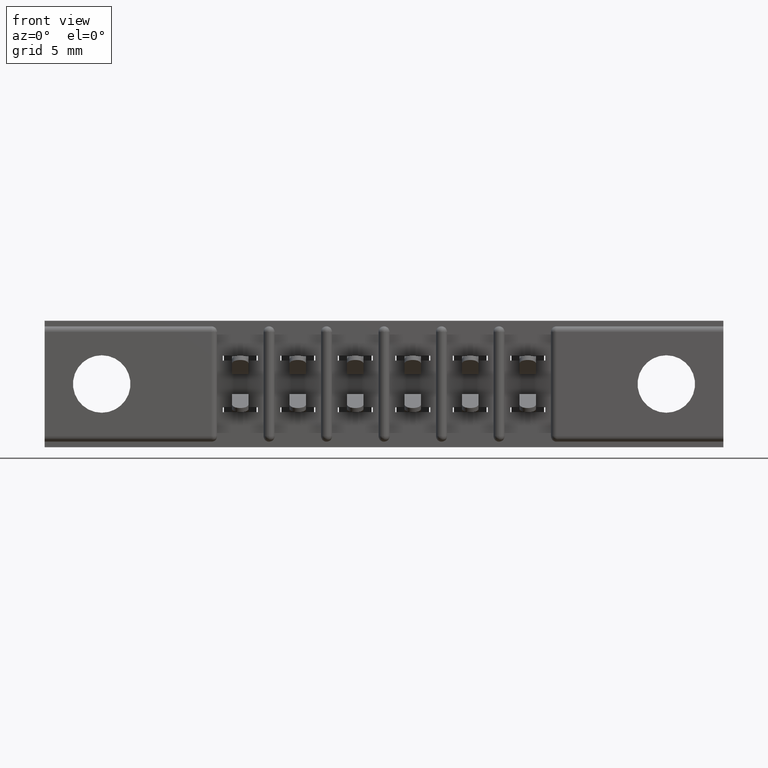
[diagram: clean part render]
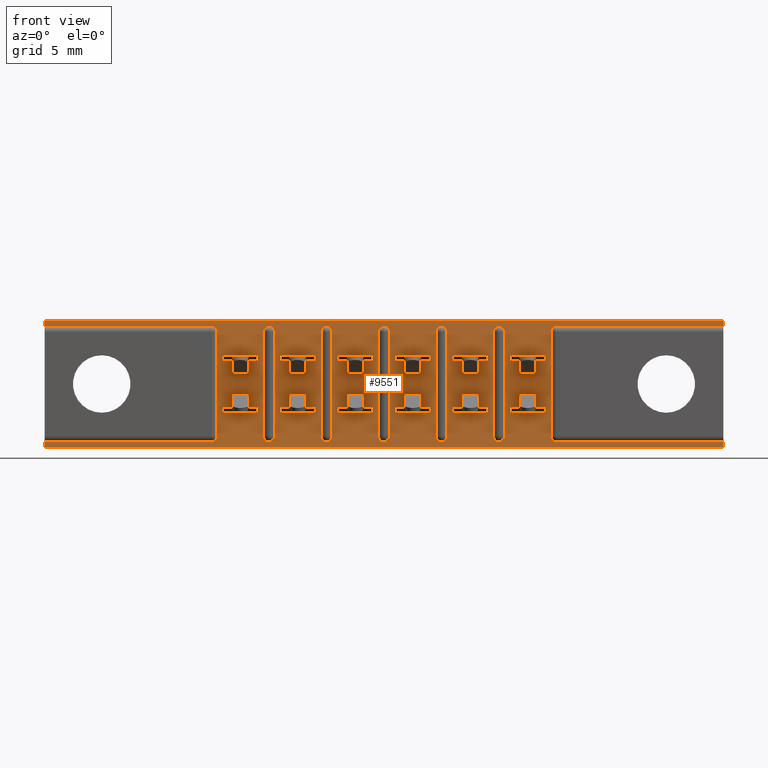
[diagram: same view with one face highlighted and labeled with its STEP entity id]
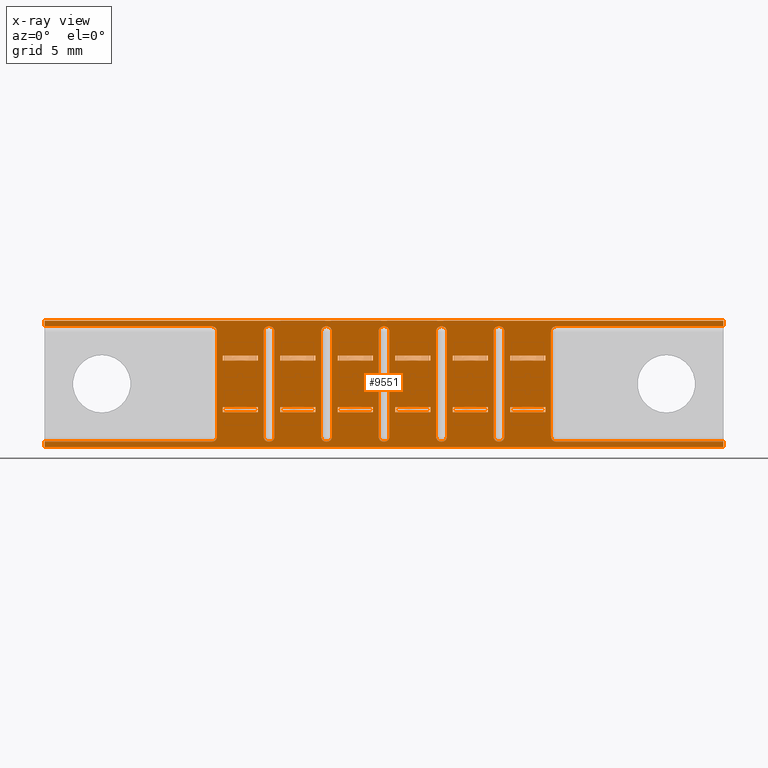
[diagram: x-ray of the same camera — body ghosted, the highlighted face saturated]
A machine part, front view. The second image highlights one B-rep face of the part: STEP entity #9551.
The next image is the same camera in x-ray: the body ghosted, the highlighted face saturated — about 0% of this face is hidden behind the body in this view.
In plain terms, the highlighted planar face has unit normal (0, 1, 0).
Its self-contained STEP definition (entity closure, byte-faithful):
#12 = ORIENTED_EDGE ( 'NONE', *, *, #849, .T. ) ;
#14 = VERTEX_POINT ( 'NONE', #5727 ) ;
#19 = DIRECTION ( 'NONE',  ( 0.0000000000000000000, 1.000000000000000000, 0.0000000000000000000 ) ) ;
#42 = DIRECTION ( 'NONE',  ( 0.0000000000000000000, 0.0000000000000000000, 1.000000000000000000 ) ) ;
#128 = AXIS2_PLACEMENT_3D ( 'NONE', #3948, #1343, #4773 ) ;
#149 = CARTESIAN_POINT ( 'NONE',  ( 0.4835000000000014800, 0.03100000000000000000, -0.09500000000000020900 ) ) ;
#153 = ORIENTED_EDGE ( 'NONE', *, *, #7187, .F. ) ;
#174 = AXIS2_PLACEMENT_3D ( 'NONE', #8271, #332, #300 ) ;
#186 = VECTOR ( 'NONE', #11298, 39.37007874015748100 ) ;
#192 = VERTEX_POINT ( 'NONE', #7012 ) ;
#200 = CARTESIAN_POINT ( 'NONE',  ( 0.0000000000000000000, 0.03100000000000000000, -0.3280000000000000100 ) ) ;
#205 = EDGE_CURVE ( 'NONE', #5722, #784, #3709, .T. ) ;
#226 = DIRECTION ( 'NONE',  ( 0.0000000000000000000, 0.0000000000000000000, 1.000000000000000000 ) ) ;
#238 = CARTESIAN_POINT ( 'NONE',  ( 0.5785000000000020100, 0.03100000000000000000, -0.09500000000000032000 ) ) ;
#242 = DIRECTION ( 'NONE',  ( -1.000000000000000000, -0.0000000000000000000, -0.0000000000000000000 ) ) ;
#256 = CARTESIAN_POINT ( 'NONE',  ( 1.202500000000001900, 0.03100000000000002400, -0.2350000000000002400 ) ) ;
#265 = VERTEX_POINT ( 'NONE', #1005 ) ;
#298 = FACE_BOUND ( 'NONE', #4137, .T. ) ;
#300 = DIRECTION ( 'NONE',  ( 0.0000000000000000000, 0.0000000000000000000, 1.000000000000000000 ) ) ;
#332 = DIRECTION ( 'NONE',  ( 0.0000000000000000000, 1.000000000000000000, 0.0000000000000000000 ) ) ;
#333 = ORIENTED_EDGE ( 'NONE', *, *, #8305, .T. ) ;
#349 = CIRCLE ( 'NONE', #5737, 0.01499999999999999900 ) ;
#361 = DIRECTION ( 'NONE',  ( 0.0000000000000000000, 0.0000000000000000000, -1.000000000000000000 ) ) ;
#365 = VERTEX_POINT ( 'NONE', #1200 ) ;
#370 = CARTESIAN_POINT ( 'NONE',  ( 0.9515000000000014600, 0.03100000000000000000, -0.09500000000000020900 ) ) ;
#385 = CARTESIAN_POINT ( 'NONE',  ( 0.7800000000000001400, 0.03100000000000002400, -0.3130000000000000600 ) ) ;
#386 = VERTEX_POINT ( 'NONE', #2009 ) ;
#401 = VERTEX_POINT ( 'NONE', #7468 ) ;
#414 = CARTESIAN_POINT ( 'NONE',  ( 0.5785000000000020100, 0.03100000000000002400, -0.05850000000000024600 ) ) ;
#433 = DIRECTION ( 'NONE',  ( 0.0000000000000000000, -0.0000000000000000000, 1.000000000000000000 ) ) ;
#449 = DIRECTION ( 'NONE',  ( 0.0000000000000000000, -0.0000000000000000000, 1.000000000000000000 ) ) ;
#460 = VECTOR ( 'NONE', #1915, 39.37007874015748100 ) ;
#501 = DIRECTION ( 'NONE',  ( 0.0000000000000000000, -0.0000000000000000000, 1.000000000000000000 ) ) ;
#512 = PLANE ( 'NONE',  #5108 ) ;
#516 = DIRECTION ( 'NONE',  ( 0.0000000000000000000, 0.0000000000000000000, 1.000000000000000000 ) ) ;
#525 = EDGE_CURVE ( 'NONE', #4069, #8146, #1613, .T. ) ;
#528 = EDGE_CURVE ( 'NONE', #5806, #2713, #6227, .T. ) ;
#578 = CARTESIAN_POINT ( 'NONE',  ( 0.4835000000000014800, 0.03100000000000000000, -0.09500000000000020900 ) ) ;
#597 = CARTESIAN_POINT ( 'NONE',  ( 0.4680000000000001900, 0.03100000000000002400, -0.02999999999999995400 ) ) ;
#604 = CARTESIAN_POINT ( 'NONE',  ( 1.092000000000000100, 0.03100000000000002400, -0.3130000000000000600 ) ) ;
#637 = CARTESIAN_POINT ( 'NONE',  ( 0.7955000000000014300, 0.03100000000000000000, -0.1080000000000002100 ) ) ;
#671 = VECTOR ( 'NONE', #1262, 39.37007874015748100 ) ;
#675 = ORIENTED_EDGE ( 'NONE', *, *, #4058, .F. ) ;
#747 = ORIENTED_EDGE ( 'NONE', *, *, #9666, .T. ) ;
#779 = VECTOR ( 'NONE', #2792, 39.37007874015748100 ) ;
#784 = VERTEX_POINT ( 'NONE', #6225 ) ;
#793 = CARTESIAN_POINT ( 'NONE',  ( 1.107500000000002100, 0.03100000000000002400, -0.05850000000000024600 ) ) ;
#811 = EDGE_CURVE ( 'NONE', #192, #5509, #3545, .T. ) ;
#849 = EDGE_CURVE ( 'NONE', #4069, #10961, #2016, .T. ) ;
#854 = ORIENTED_EDGE ( 'NONE', *, *, #4818, .T. ) ;
#874 = CIRCLE ( 'NONE', #8140, 0.01499999999999999900 ) ;
#878 = CARTESIAN_POINT ( 'NONE',  ( 0.6090000000000002100, 0.03100000000000000000, -0.3130000000000000600 ) ) ;
#883 = LINE ( 'NONE', #4412, #8411 ) ;
#915 = CARTESIAN_POINT ( 'NONE',  ( 0.9210000000000000400, 0.03100000000000000000, -0.3280000000000000100 ) ) ;
#949 = ORIENTED_EDGE ( 'NONE', *, *, #4840, .F. ) ;
#950 = CARTESIAN_POINT ( 'NONE',  ( 0.0000000000000000000, 0.03100000000000000000, -0.3430000000000000300 ) ) ;
#962 = ORIENTED_EDGE ( 'NONE', *, *, #5467, .T. ) ;
#992 = VECTOR ( 'NONE', #6821, 39.37007874015748100 ) ;
#994 = VERTEX_POINT ( 'NONE', #6334 ) ;
#998 = CARTESIAN_POINT ( 'NONE',  ( 0.4530000000000001800, 0.03100000000000002400, -0.02999999999999995400 ) ) ;
#1001 = DIRECTION ( 'NONE',  ( 0.0000000000000000000, 1.000000000000000000, 0.0000000000000000000 ) ) ;
#1003 = VERTEX_POINT ( 'NONE', #2766 ) ;
#1005 = CARTESIAN_POINT ( 'NONE',  ( 0.7650000000000001200, 0.03100000000000000000, -0.01499999999999997700 ) ) ;
#1027 = VECTOR ( 'NONE', #5986, 39.37007874015748100 ) ;
#1075 = EDGE_CURVE ( 'NONE', #10441, #2713, #10919, .T. ) ;
#1100 = VERTEX_POINT ( 'NONE', #1215 ) ;
#1105 = EDGE_CURVE ( 'NONE', #4357, #1947, #11330, .T. ) ;
#1113 = DIRECTION ( 'NONE',  ( 0.0000000000000000000, 0.0000000000000000000, 1.000000000000000000 ) ) ;
#1114 = FACE_BOUND ( 'NONE', #8063, .T. ) ;
#1119 = DIRECTION ( 'NONE',  ( 0.0000000000000000000, 1.000000000000000000, 0.0000000000000000000 ) ) ;
#1121 = DIRECTION ( 'NONE',  ( 0.0000000000000000000, 1.000000000000000000, 0.0000000000000000000 ) ) ;
#1139 = ORIENTED_EDGE ( 'NONE', *, *, #1430, .T. ) ;
#1140 = CARTESIAN_POINT ( 'NONE',  ( 0.9515000000000021200, 0.03100000000000000000, -0.2350000000000002600 ) ) ;
#1176 = CARTESIAN_POINT ( 'NONE',  ( 1.232999999999999900, 0.03100000000000000000, -0.3130000000000000600 ) ) ;
#1184 = CARTESIAN_POINT ( 'NONE',  ( 1.107500000000002100, 0.03100000000000002400, -0.2350000000000002600 ) ) ;
#1186 = DIRECTION ( 'NONE',  ( 0.0000000000000000000, 0.0000000000000000000, 1.000000000000000000 ) ) ;
#1195 = CARTESIAN_POINT ( 'NONE',  ( 1.263500000000002100, 0.03100000000000002400, -0.05850000000000024600 ) ) ;
#1200 = CARTESIAN_POINT ( 'NONE',  ( 1.218000000000000200, 0.03100000000000002400, -0.3130000000000000600 ) ) ;
#1204 = DIRECTION ( 'NONE',  ( -1.000000000000000000, 0.0000000000000000000, 1.078361050130624000E-015 ) ) ;
#1215 = CARTESIAN_POINT ( 'NONE',  ( 0.7955000000000022100, 0.03100000000000002400, -0.2350000000000002600 ) ) ;
#1218 = ORIENTED_EDGE ( 'NONE', *, *, #525, .F. ) ;
#1227 = CARTESIAN_POINT ( 'NONE',  ( 1.389000000000000200, 0.03100000000000000000, -0.3130000000000000600 ) ) ;
#1262 = DIRECTION ( 'NONE',  ( 0.0000000000000000000, -0.0000000000000000000, 1.000000000000000000 ) ) ;
#1267 = EDGE_LOOP ( 'NONE', ( #4611, #6848, #6811, #2105 ) ) ;
#1288 = LINE ( 'NONE', #9635, #9645 ) ;
#1310 = DIRECTION ( 'NONE',  ( 0.0000000000000000000, 0.0000000000000000000, -1.000000000000000000 ) ) ;
#1326 = AXIS2_PLACEMENT_3D ( 'NONE', #10565, #8910, #5346 ) ;
#1332 = VECTOR ( 'NONE', #1113, 39.37007874015748100 ) ;
#1343 = DIRECTION ( 'NONE',  ( 0.0000000000000000000, 1.000000000000000000, 0.0000000000000000000 ) ) ;
#1363 = ORIENTED_EDGE ( 'NONE', *, *, #7266, .T. ) ;
#1372 = CARTESIAN_POINT ( 'NONE',  ( 0.9210000000000000400, 0.03100000000000000000, -0.01499999999999997700 ) ) ;
#1384 = CARTESIAN_POINT ( 'NONE',  ( 0.4530000000000003500, 0.03100000000000000000, -0.3280000000000000100 ) ) ;
#1399 = ORIENTED_EDGE ( 'NONE', *, *, #3748, .T. ) ;
#1421 = VECTOR ( 'NONE', #9673, 39.37007874015748100 ) ;
#1430 = EDGE_CURVE ( 'NONE', #7798, #7427, #9537, .T. ) ;
#1440 = DIRECTION ( 'NONE',  ( 0.0000000000000000000, 0.0000000000000000000, 1.000000000000000000 ) ) ;
#1456 = EDGE_CURVE ( 'NONE', #11379, #7763, #5225, .T. ) ;
#1457 = DIRECTION ( 'NONE',  ( 0.0000000000000000000, 1.000000000000000000, 0.0000000000000000000 ) ) ;
#1500 = AXIS2_PLACEMENT_3D ( 'NONE', #1227, #3836, #4696 ) ;
#1502 = EDGE_CURVE ( 'NONE', #9294, #4254, #349, .T. ) ;
#1514 = ORIENTED_EDGE ( 'NONE', *, *, #10833, .T. ) ;
#1517 = LINE ( 'NONE', #8990, #8344 ) ;
#1521 = CARTESIAN_POINT ( 'NONE',  ( 1.358500000000001800, 0.03100000000000002400, -0.05850000000000024600 ) ) ;
#1562 = CARTESIAN_POINT ( 'NONE',  ( 0.5940000000000001900, 0.03100000000000002400, -0.4680000000000006900 ) ) ;
#1567 = LINE ( 'NONE', #10013, #4625 ) ;
#1575 = DIRECTION ( 'NONE',  ( 0.0000000000000000000, 0.0000000000000000000, 1.000000000000000000 ) ) ;
#1579 = EDGE_CURVE ( 'NONE', #3728, #4701, #6893, .T. ) ;
#1591 = CARTESIAN_POINT ( 'NONE',  ( 1.077000000000000200, 0.03100000000000000000, -0.3130000000000000600 ) ) ;
#1613 = LINE ( 'NONE', #9388, #2316 ) ;
#1622 = VERTEX_POINT ( 'NONE', #2272 ) ;
#1642 = CARTESIAN_POINT ( 'NONE',  ( 0.7954999999999992100, 0.03100000000000000000, -0.2480000000000002800 ) ) ;
#1643 = VECTOR ( 'NONE', #3576, 39.37007874015748100 ) ;
#1676 = CARTESIAN_POINT ( 'NONE',  ( 0.5940000000000001900, 0.03100000000000002400, -0.3130000000000000600 ) ) ;
#1681 = CARTESIAN_POINT ( 'NONE',  ( 0.4835000000000020400, 0.03100000000000002400, -0.05850000000000024600 ) ) ;
#1685 = CARTESIAN_POINT ( 'NONE',  ( 1.263500000000001400, 0.03100000000000000000, -0.1080000000000002100 ) ) ;
#1687 = EDGE_CURVE ( 'NONE', #7599, #10961, #3676, .T. ) ;
#1692 = ORIENTED_EDGE ( 'NONE', *, *, #7191, .T. ) ;
#1706 = CARTESIAN_POINT ( 'NONE',  ( 1.842000000000000700, 0.03100000000000000000, 0.0000000000000000000 ) ) ;
#1710 = CIRCLE ( 'NONE', #6325, 0.01499999999999999900 ) ;
#1721 = VERTEX_POINT ( 'NONE', #4297 ) ;
#1743 = EDGE_CURVE ( 'NONE', #8228, #401, #8967, .T. ) ;
#1751 = ORIENTED_EDGE ( 'NONE', *, *, #6257, .T. ) ;
#1764 = EDGE_CURVE ( 'NONE', #3894, #3615, #11031, .T. ) ;
#1774 = EDGE_LOOP ( 'NONE', ( #11099, #8809, #4116, #1139, #4765, #10185 ) ) ;
#1799 = DIRECTION ( 'NONE',  ( -1.000000000000000000, 0.0000000000000000000, 1.078361050130624000E-015 ) ) ;
#1804 = FACE_BOUND ( 'NONE', #1267, .T. ) ;
#1809 = CARTESIAN_POINT ( 'NONE',  ( 1.248000000000000000, 0.03100000000000002400, -0.3130000000000000600 ) ) ;
#1810 = AXIS2_PLACEMENT_3D ( 'NONE', #878, #11447, #10515 ) ;
#1814 = LINE ( 'NONE', #4716, #10059 ) ;
#1820 = ORIENTED_EDGE ( 'NONE', *, *, #1456, .F. ) ;
#1851 = CARTESIAN_POINT ( 'NONE',  ( 1.062000000000000300, 0.03100000000000002400, -0.4680000000000006900 ) ) ;
#1855 = DIRECTION ( 'NONE',  ( 1.000000000000000000, 0.0000000000000000000, 1.797268416884331900E-015 ) ) ;
#1882 = DIRECTION ( 'NONE',  ( 1.000000000000000000, -0.0000000000000000000, 1.797268416884373200E-016 ) ) ;
#1903 = VERTEX_POINT ( 'NONE', #6177 ) ;
#1908 = LINE ( 'NONE', #1681, #7203 ) ;
#1915 = DIRECTION ( 'NONE',  ( -1.000000000000000000, 0.0000000000000000000, -3.594536833768775500E-016 ) ) ;
#1922 = CARTESIAN_POINT ( 'NONE',  ( 0.9060000000000001400, 0.03100000000000002400, -0.3130000000000000600 ) ) ;
#1930 = CARTESIAN_POINT ( 'NONE',  ( 1.389000000000000200, 0.03100000000000000000, -0.3280000000000000100 ) ) ;
#1937 = VERTEX_POINT ( 'NONE', #10625 ) ;
#1940 = EDGE_CURVE ( 'NONE', #365, #8607, #883, .T. ) ;
#1947 = VERTEX_POINT ( 'NONE', #3543 ) ;
#1955 = VECTOR ( 'NONE', #7060, 39.37007874015748100 ) ;
#1956 = CIRCLE ( 'NONE', #6566, 0.01500000000000001200 ) ;
#2002 = VECTOR ( 'NONE', #5955, 39.37007874015748100 ) ;
#2008 = DIRECTION ( 'NONE',  ( 0.0000000000000000000, -0.0000000000000000000, 1.000000000000000000 ) ) ;
#2009 = CARTESIAN_POINT ( 'NONE',  ( 1.389000000000000200, 0.03100000000000000000, -0.01499999999999997700 ) ) ;
#2010 = DIRECTION ( 'NONE',  ( 0.0000000000000000000, 0.0000000000000000000, 1.000000000000000000 ) ) ;
#2016 = LINE ( 'NONE', #793, #8850 ) ;
#2023 = VECTOR ( 'NONE', #242, 39.37007874015748100 ) ;
#2027 = CARTESIAN_POINT ( 'NONE',  ( 1.374000000000000100, 0.03100000000000002400, -0.3130000000000000600 ) ) ;
#2062 = CARTESIAN_POINT ( 'NONE',  ( 1.358500000000001800, 0.03100000000000000000, -0.2480000000000000800 ) ) ;
#2070 = ORIENTED_EDGE ( 'NONE', *, *, #3151, .T. ) ;
#2098 = DIRECTION ( 'NONE',  ( 0.0000000000000000000, -0.0000000000000000000, 1.000000000000000000 ) ) ;
#2101 = CARTESIAN_POINT ( 'NONE',  ( 1.842000000000000700, 0.03100000000000000000, -0.01499999999999997700 ) ) ;
#2102 = LINE ( 'NONE', #4784, #5754 ) ;
#2105 = ORIENTED_EDGE ( 'NONE', *, *, #7786, .F. ) ;
#2127 = EDGE_CURVE ( 'NONE', #9607, #5431, #1710, .T. ) ;
#2136 = DIRECTION ( 'NONE',  ( 0.0000000000000000000, -0.0000000000000000000, 1.000000000000000000 ) ) ;
#2158 = VECTOR ( 'NONE', #6528, 39.37007874015748100 ) ;
#2164 = EDGE_CURVE ( 'NONE', #7842, #8349, #11306, .T. ) ;
#2184 = CARTESIAN_POINT ( 'NONE',  ( 1.842000000000000700, 0.03100000000000000000, -0.3430000000000000300 ) ) ;
#2186 = ORIENTED_EDGE ( 'NONE', *, *, #6771, .F. ) ;
#2231 = DIRECTION ( 'NONE',  ( 0.0000000000000000000, -0.0000000000000000000, 1.000000000000000000 ) ) ;
#2243 = CARTESIAN_POINT ( 'NONE',  ( 0.9515000000000021200, 0.03100000000000002400, -0.05850000000000024600 ) ) ;
#2247 = VERTEX_POINT ( 'NONE', #1809 ) ;
#2249 = EDGE_LOOP ( 'NONE', ( #6806, #10004, #962, #333, #7083, #4418, #6143, #747, #6974, #2924, #2070, #8065, #4056, #6934, #10823, #8657 ) ) ;
#2263 = EDGE_CURVE ( 'NONE', #2979, #4816, #9249, .T. ) ;
#2265 = ORIENTED_EDGE ( 'NONE', *, *, #528, .T. ) ;
#2272 = CARTESIAN_POINT ( 'NONE',  ( 1.107500000000001500, 0.03100000000000000000, -0.09500000000000020900 ) ) ;
#2294 = CARTESIAN_POINT ( 'NONE',  ( 0.6240000000000002200, 0.03100000000000002400, -0.4680000000000006900 ) ) ;
#2310 = VERTEX_POINT ( 'NONE', #2620 ) ;
#2316 = VECTOR ( 'NONE', #5783, 39.37007874015748100 ) ;
#2326 = ORIENTED_EDGE ( 'NONE', *, *, #3342, .F. ) ;
#2337 = VECTOR ( 'NONE', #9662, 39.37007874015748100 ) ;
#2350 = LINE ( 'NONE', #9292, #9877 ) ;
#2361 = CARTESIAN_POINT ( 'NONE',  ( 1.248000000000000000, 0.03100000000000002400, -0.4680000000000006900 ) ) ;
#2369 = FACE_BOUND ( 'NONE', #8903, .T. ) ;
#2382 = VERTEX_POINT ( 'NONE', #1930 ) ;
#2393 = EDGE_CURVE ( 'NONE', #4426, #9299, #3515, .T. ) ;
#2407 = LINE ( 'NONE', #4933, #9257 ) ;
#2423 = AXIS2_PLACEMENT_3D ( 'NONE', #8547, #1457, #516 ) ;
#2463 = LINE ( 'NONE', #414, #7217 ) ;
#2500 = EDGE_CURVE ( 'NONE', #11128, #365, #6454, .T. ) ;
#2512 = DIRECTION ( 'NONE',  ( 0.0000000000000000000, 0.0000000000000000000, -1.000000000000000000 ) ) ;
#2522 = EDGE_CURVE ( 'NONE', #5431, #7798, #8808, .T. ) ;
#2554 = ORIENTED_EDGE ( 'NONE', *, *, #7220, .T. ) ;
#2556 = CARTESIAN_POINT ( 'NONE',  ( 1.263500000000002100, 0.03100000000000002400, -0.2350000000000002600 ) ) ;
#2590 = DIRECTION ( 'NONE',  ( 1.000000000000000000, -0.0000000000000000000, 1.797268416884373200E-016 ) ) ;
#2595 = CIRCLE ( 'NONE', #3830, 0.01500000000000001200 ) ;
#2607 = DIRECTION ( 'NONE',  ( 0.0000000000000000000, -0.0000000000000000000, 1.000000000000000000 ) ) ;
#2620 = CARTESIAN_POINT ( 'NONE',  ( 1.077000000000000200, 0.03100000000000000000, -0.3280000000000000100 ) ) ;
#2657 = ORIENTED_EDGE ( 'NONE', *, *, #5656, .F. ) ;
#2658 = CARTESIAN_POINT ( 'NONE',  ( 0.9515000000000021200, 0.03100000000000002400, -0.05850000000000024600 ) ) ;
#2690 = DIRECTION ( 'NONE',  ( 0.0000000000000000000, 0.0000000000000000000, 1.000000000000000000 ) ) ;
#2693 = CARTESIAN_POINT ( 'NONE',  ( 1.263499999999999200, 0.03100000000000000000, -0.2480000000000002800 ) ) ;
#2694 = VERTEX_POINT ( 'NONE', #9282 ) ;
#2713 = VERTEX_POINT ( 'NONE', #8417 ) ;
#2751 = ORIENTED_EDGE ( 'NONE', *, *, #8641, .F. ) ;
#2766 = CARTESIAN_POINT ( 'NONE',  ( 0.0000000000000000000, 0.03100000000000000000, -0.01499999999999997700 ) ) ;
#2790 = VERTEX_POINT ( 'NONE', #2062 ) ;
#2791 = ORIENTED_EDGE ( 'NONE', *, *, #4932, .T. ) ;
#2792 = DIRECTION ( 'NONE',  ( 0.0000000000000000000, -0.0000000000000000000, 1.000000000000000000 ) ) ;
#2830 = CARTESIAN_POINT ( 'NONE',  ( 1.263500000000002100, 0.03100000000000002400, -0.1080000000000002100 ) ) ;
#2881 = VERTEX_POINT ( 'NONE', #4480 ) ;
#2894 = EDGE_CURVE ( 'NONE', #10998, #9607, #3347, .T. ) ;
#2901 = VECTOR ( 'NONE', #5639, 39.37007874015748100 ) ;
#2907 = DIRECTION ( 'NONE',  ( 0.0000000000000000000, 0.0000000000000000000, 1.000000000000000000 ) ) ;
#2924 = ORIENTED_EDGE ( 'NONE', *, *, #2393, .T. ) ;
#2925 = FACE_BOUND ( 'NONE', #5002, .T. ) ;
#2944 = CARTESIAN_POINT ( 'NONE',  ( 1.046500000000002000, 0.03100000000000002400, -0.05850000000000024600 ) ) ;
#2979 = VERTEX_POINT ( 'NONE', #6551 ) ;
#3033 = LINE ( 'NONE', #2294, #7490 ) ;
#3042 = VECTOR ( 'NONE', #11411, 39.37007874015748100 ) ;
#3072 = ORIENTED_EDGE ( 'NONE', *, *, #10725, .T. ) ;
#3113 = VECTOR ( 'NONE', #1440, 39.37007874015748100 ) ;
#3151 = EDGE_CURVE ( 'NONE', #9299, #994, #2102, .T. ) ;
#3155 = LINE ( 'NONE', #4288, #7356 ) ;
#3172 = CARTESIAN_POINT ( 'NONE',  ( 1.842000000000000700, 0.03100000000000000000, 0.0000000000000000000 ) ) ;
#3190 = VERTEX_POINT ( 'NONE', #4037 ) ;
#3191 = CARTESIAN_POINT ( 'NONE',  ( 0.8905000000000020700, 0.03100000000000000000, -0.2480000000000000800 ) ) ;
#3224 = CARTESIAN_POINT ( 'NONE',  ( 0.7955000000000020900, 0.03100000000000002400, -0.1080000000000002100 ) ) ;
#3233 = CARTESIAN_POINT ( 'NONE',  ( 0.0000000000000000000, 0.03100000000000000000, 0.0000000000000000000 ) ) ;
#3252 = VECTOR ( 'NONE', #8320, 39.37007874015748100 ) ;
#3313 = LINE ( 'NONE', #6202, #8635 ) ;
#3316 = EDGE_LOOP ( 'NONE', ( #3800, #8816, #6990, #6395 ) ) ;
#3342 = EDGE_CURVE ( 'NONE', #6553, #5722, #8935, .T. ) ;
#3344 = DIRECTION ( 'NONE',  ( 1.000000000000000000, -0.0000000000000000000, 1.797268416884373200E-016 ) ) ;
#3347 = CIRCLE ( 'NONE', #9240, 0.01499999999999999900 ) ;
#3388 = DIRECTION ( 'NONE',  ( 0.0000000000000000000, 0.0000000000000000000, 1.000000000000000000 ) ) ;
#3395 = ORIENTED_EDGE ( 'NONE', *, *, #8937, .F. ) ;
#3399 = LINE ( 'NONE', #2101, #2023 ) ;
#3428 = VECTOR ( 'NONE', #8981, 39.37007874015748100 ) ;
#3437 = EDGE_CURVE ( 'NONE', #7049, #265, #4903, .T. ) ;
#3447 = LINE ( 'NONE', #11012, #671 ) ;
#3462 = DIRECTION ( 'NONE',  ( 0.0000000000000000000, 0.0000000000000000000, 1.000000000000000000 ) ) ;
#3470 = DIRECTION ( 'NONE',  ( 0.0000000000000000000, 1.000000000000000000, 0.0000000000000000000 ) ) ;
#3508 = ORIENTED_EDGE ( 'NONE', *, *, #9683, .T. ) ;
#3513 = CARTESIAN_POINT ( 'NONE',  ( 1.107500000000001500, 0.03100000000000000000, -0.09500000000000020900 ) ) ;
#3515 = CIRCLE ( 'NONE', #8028, 0.01499999999999999900 ) ;
#3543 = CARTESIAN_POINT ( 'NONE',  ( 1.358500000000001800, 0.03100000000000000000, -0.09500000000000032000 ) ) ;
#3545 = CIRCLE ( 'NONE', #1810, 0.01500000000000001200 ) ;
#3557 = VECTOR ( 'NONE', #3740, 39.37007874015748100 ) ;
#3560 = VERTEX_POINT ( 'NONE', #9912 ) ;
#3576 = DIRECTION ( 'NONE',  ( 0.0000000000000000000, 0.0000000000000000000, -1.000000000000000000 ) ) ;
#3595 = LINE ( 'NONE', #10275, #6944 ) ;
#3609 = VECTOR ( 'NONE', #1855, 39.37007874015748100 ) ;
#3615 = VERTEX_POINT ( 'NONE', #8897 ) ;
#3625 = CARTESIAN_POINT ( 'NONE',  ( 0.7650000000000001200, 0.03100000000000000000, -0.3130000000000000600 ) ) ;
#3646 = CARTESIAN_POINT ( 'NONE',  ( 1.062000000000000300, 0.03100000000000002400, -0.3130000000000000600 ) ) ;
#3648 = ORIENTED_EDGE ( 'NONE', *, *, #10219, .F. ) ;
#3670 = CARTESIAN_POINT ( 'NONE',  ( 0.6240000000000002200, 0.03100000000000002400, -0.3130000000000000600 ) ) ;
#3676 = LINE ( 'NONE', #5017, #1027 ) ;
#3694 = LINE ( 'NONE', #1851, #1332 ) ;
#3695 = DIRECTION ( 'NONE',  ( 0.0000000000000000000, 1.000000000000000000, 0.0000000000000000000 ) ) ;
#3701 = VERTEX_POINT ( 'NONE', #2027 ) ;
#3709 = LINE ( 'NONE', #9693, #779 ) ;
#3715 = EDGE_CURVE ( 'NONE', #7549, #10998, #4189, .T. ) ;
#3728 = VERTEX_POINT ( 'NONE', #4651 ) ;
#3737 = VECTOR ( 'NONE', #449, 39.37007874015748100 ) ;
#3740 = DIRECTION ( 'NONE',  ( -1.000000000000000000, 0.0000000000000000000, 1.078361050130624000E-015 ) ) ;
#3748 = EDGE_CURVE ( 'NONE', #2247, #11128, #1956, .T. ) ;
#3767 = LINE ( 'NONE', #4962, #9764 ) ;
#3778 = VERTEX_POINT ( 'NONE', #5911 ) ;
#3780 = LINE ( 'NONE', #1685, #1421 ) ;
#3792 = CIRCLE ( 'NONE', #174, 0.01499999999999999900 ) ;
#3800 = ORIENTED_EDGE ( 'NONE', *, *, #6199, .T. ) ;
#3802 = ORIENTED_EDGE ( 'NONE', *, *, #1579, .T. ) ;
#3829 = CARTESIAN_POINT ( 'NONE',  ( 0.4530000000000003500, 0.03100000000000000000, -0.01499999999999997700 ) ) ;
#3830 = AXIS2_PLACEMENT_3D ( 'NONE', #1591, #6103, #9531 ) ;
#3836 = DIRECTION ( 'NONE',  ( 0.0000000000000000000, 1.000000000000000000, 0.0000000000000000000 ) ) ;
#3842 = VERTEX_POINT ( 'NONE', #11129 ) ;
#3848 = CARTESIAN_POINT ( 'NONE',  ( 0.7500000000000002200, 0.03100000000000002400, -0.02999999999999995400 ) ) ;
#3885 = LINE ( 'NONE', #9856, #9184 ) ;
#3894 = VERTEX_POINT ( 'NONE', #3224 ) ;
#3905 = AXIS2_PLACEMENT_3D ( 'NONE', #6394, #3695, #9822 ) ;
#3914 = CARTESIAN_POINT ( 'NONE',  ( 0.9060000000000001400, 0.03100000000000002400, -0.4680000000000006900 ) ) ;
#3927 = LINE ( 'NONE', #6517, #5764 ) ;
#3948 = CARTESIAN_POINT ( 'NONE',  ( 0.9210000000000000400, 0.03100000000000000000, -0.3130000000000000600 ) ) ;
#3994 = LINE ( 'NONE', #5516, #4133 ) ;
#4002 = VECTOR ( 'NONE', #8556, 39.37007874015748100 ) ;
#4015 = LINE ( 'NONE', #8996, #1643 ) ;
#4030 = VECTOR ( 'NONE', #7879, 39.37007874015748100 ) ;
#4037 = CARTESIAN_POINT ( 'NONE',  ( 0.4835000000000020900, 0.03100000000000002400, -0.2350000000000002600 ) ) ;
#4056 = ORIENTED_EDGE ( 'NONE', *, *, #6969, .T. ) ;
#4058 = EDGE_CURVE ( 'NONE', #1721, #1100, #10039, .T. ) ;
#4068 = EDGE_LOOP ( 'NONE', ( #2554, #5844, #1363, #1399, #9998, #9793 ) ) ;
#4069 = VERTEX_POINT ( 'NONE', #8840 ) ;
#4071 = DIRECTION ( 'NONE',  ( 0.0000000000000000000, 0.0000000000000000000, 1.000000000000000000 ) ) ;
#4089 = DIRECTION ( 'NONE',  ( 0.0000000000000000000, 0.0000000000000000000, -1.000000000000000000 ) ) ;
#4113 = CARTESIAN_POINT ( 'NONE',  ( 1.842000000000000700, 0.03100000000000000000, -0.01499999999999997700 ) ) ;
#4116 = ORIENTED_EDGE ( 'NONE', *, *, #2522, .T. ) ;
#4121 = DIRECTION ( 'NONE',  ( 0.0000000000000000000, 0.0000000000000000000, 1.000000000000000000 ) ) ;
#4133 = VECTOR ( 'NONE', #9823, 39.37007874015748100 ) ;
#4137 = EDGE_LOOP ( 'NONE', ( #7718, #4294, #6162, #2657 ) ) ;
#4147 = EDGE_CURVE ( 'NONE', #2790, #9731, #5163, .T. ) ;
#4172 = VERTEX_POINT ( 'NONE', #7735 ) ;
#4189 = LINE ( 'NONE', #3914, #4329 ) ;
#4197 = CARTESIAN_POINT ( 'NONE',  ( 0.7955000000000020900, 0.03100000000000002400, -0.05850000000000024600 ) ) ;
#4224 = VECTOR ( 'NONE', #4477, 39.37007874015748100 ) ;
#4254 = VERTEX_POINT ( 'NONE', #6005 ) ;
#4259 = DIRECTION ( 'NONE',  ( 0.0000000000000000000, 0.0000000000000000000, 1.000000000000000000 ) ) ;
#4260 = CARTESIAN_POINT ( 'NONE',  ( 0.6090000000000002100, 0.03100000000000002400, -0.02999999999999995400 ) ) ;
#4288 = CARTESIAN_POINT ( 'NONE',  ( 0.9514999999999992400, 0.03100000000000000000, -0.2480000000000002800 ) ) ;
#4294 = ORIENTED_EDGE ( 'NONE', *, *, #10343, .F. ) ;
#4297 = CARTESIAN_POINT ( 'NONE',  ( 0.8905000000000020700, 0.03100000000000002400, -0.2350000000000002400 ) ) ;
#4320 = ORIENTED_EDGE ( 'NONE', *, *, #7026, .F. ) ;
#4329 = VECTOR ( 'NONE', #9095, 39.37007874015748100 ) ;
#4332 = CARTESIAN_POINT ( 'NONE',  ( 0.5785000000000020100, 0.03100000000000002400, -0.2350000000000002400 ) ) ;
#4357 = VERTEX_POINT ( 'NONE', #7071 ) ;
#4405 = VERTEX_POINT ( 'NONE', #4544 ) ;
#4412 = CARTESIAN_POINT ( 'NONE',  ( 1.218000000000000200, 0.03100000000000002400, -0.4680000000000006900 ) ) ;
#4418 = ORIENTED_EDGE ( 'NONE', *, *, #5068, .F. ) ;
#4426 = VERTEX_POINT ( 'NONE', #3829 ) ;
#4477 = DIRECTION ( 'NONE',  ( 0.0000000000000000000, -0.0000000000000000000, 1.000000000000000000 ) ) ;
#4478 = EDGE_CURVE ( 'NONE', #4860, #4816, #8057, .T. ) ;
#4480 = CARTESIAN_POINT ( 'NONE',  ( 0.5940000000000001900, 0.03100000000000002400, -0.02999999999999995400 ) ) ;
#4488 = DIRECTION ( 'NONE',  ( 1.000000000000000000, -0.0000000000000000000, 1.797268416884331900E-015 ) ) ;
#4509 = CARTESIAN_POINT ( 'NONE',  ( 0.0000000000000000000, 0.03100000000000000000, -0.3430000000000000300 ) ) ;
#4521 = VERTEX_POINT ( 'NONE', #8144 ) ;
#4542 = EDGE_CURVE ( 'NONE', #3615, #3842, #3447, .T. ) ;
#4544 = CARTESIAN_POINT ( 'NONE',  ( 0.4835000000000020400, 0.03100000000000002400, -0.1080000000000002100 ) ) ;
#4611 = ORIENTED_EDGE ( 'NONE', *, *, #11376, .T. ) ;
#4625 = VECTOR ( 'NONE', #1204, 39.37007874015748100 ) ;
#4632 = EDGE_LOOP ( 'NONE', ( #4320, #949, #8526, #9221 ) ) ;
#4638 = DIRECTION ( 'NONE',  ( -0.0000000000000000000, -0.0000000000000000000, -1.000000000000000000 ) ) ;
#4640 = EDGE_CURVE ( 'NONE', #10949, #11410, #2350, .T. ) ;
#4648 = EDGE_CURVE ( 'NONE', #7427, #7549, #8624, .T. ) ;
#4651 = CARTESIAN_POINT ( 'NONE',  ( 1.062000000000000300, 0.03100000000000002400, -0.02999999999999995400 ) ) ;
#4668 = EDGE_CURVE ( 'NONE', #5570, #5732, #2463, .T. ) ;
#4696 = DIRECTION ( 'NONE',  ( 0.0000000000000000000, 0.0000000000000000000, 1.000000000000000000 ) ) ;
#4701 = VERTEX_POINT ( 'NONE', #11241 ) ;
#4710 = EDGE_CURVE ( 'NONE', #4426, #1003, #3595, .T. ) ;
#4716 = CARTESIAN_POINT ( 'NONE',  ( 0.7345000000000019300, 0.03100000000000002400, -0.05850000000000024600 ) ) ;
#4751 = FACE_BOUND ( 'NONE', #6434, .T. ) ;
#4765 = ORIENTED_EDGE ( 'NONE', *, *, #4648, .T. ) ;
#4773 = DIRECTION ( 'NONE',  ( 0.0000000000000000000, 0.0000000000000000000, 1.000000000000000000 ) ) ;
#4784 = CARTESIAN_POINT ( 'NONE',  ( 0.4680000000000001900, 0.03100000000000002400, -0.4680000000000006900 ) ) ;
#4808 = DIRECTION ( 'NONE',  ( 0.0000000000000000000, 0.0000000000000000000, 1.000000000000000000 ) ) ;
#4810 = ORIENTED_EDGE ( 'NONE', *, *, #8629, .F. ) ;
#4813 = CIRCLE ( 'NONE', #9933, 0.01500000000000001200 ) ;
#4816 = VERTEX_POINT ( 'NONE', #11388 ) ;
#4818 = EDGE_CURVE ( 'NONE', #1937, #7049, #9169, .T. ) ;
#4820 = CARTESIAN_POINT ( 'NONE',  ( 1.232999999999999900, 0.03100000000000002400, -0.02999999999999995400 ) ) ;
#4840 = EDGE_CURVE ( 'NONE', #2979, #2694, #3155, .T. ) ;
#4860 = VERTEX_POINT ( 'NONE', #10541 ) ;
#4871 = VERTEX_POINT ( 'NONE', #4332 ) ;
#4876 = CARTESIAN_POINT ( 'NONE',  ( 0.9515000000000021200, 0.03100000000000002400, -0.1080000000000002100 ) ) ;
#4903 = CIRCLE ( 'NONE', #9533, 0.01499999999999999900 ) ;
#4932 = EDGE_CURVE ( 'NONE', #7691, #1937, #6537, .T. ) ;
#4933 = CARTESIAN_POINT ( 'NONE',  ( 0.4835000000000014800, 0.03100000000000000000, -0.1080000000000002100 ) ) ;
#4962 = CARTESIAN_POINT ( 'NONE',  ( 0.0000000000000000000, 0.03100000000000000000, 0.0000000000000000000 ) ) ;
#4978 = VECTOR ( 'NONE', #11525, 39.37007874015748100 ) ;
#4999 = ORIENTED_EDGE ( 'NONE', *, *, #6030, .T. ) ;
#5002 = EDGE_LOOP ( 'NONE', ( #9083, #9594, #9068, #5064, #11310, #8163 ) ) ;
#5017 = CARTESIAN_POINT ( 'NONE',  ( 1.107500000000002100, 0.03100000000000000000, -0.2350000000000002600 ) ) ;
#5028 = ORIENTED_EDGE ( 'NONE', *, *, #9554, .F. ) ;
#5041 = EDGE_CURVE ( 'NONE', #401, #8573, #3033, .T. ) ;
#5064 = ORIENTED_EDGE ( 'NONE', *, *, #6981, .T. ) ;
#5068 = EDGE_CURVE ( 'NONE', #7842, #8374, #8060, .T. ) ;
#5091 = VECTOR ( 'NONE', #9015, 39.37007874015748100 ) ;
#5108 = AXIS2_PLACEMENT_3D ( 'NONE', #2184, #6719, #11231 ) ;
#5141 = CIRCLE ( 'NONE', #1326, 0.01500000000000001200 ) ;
#5142 = DIRECTION ( 'NONE',  ( 1.000000000000000000, -0.0000000000000000000, 1.797268416884373200E-016 ) ) ;
#5163 = LINE ( 'NONE', #1521, #4030 ) ;
#5166 = EDGE_CURVE ( 'NONE', #8085, #7691, #5141, .T. ) ;
#5196 = ORIENTED_EDGE ( 'NONE', *, *, #1764, .F. ) ;
#5225 = LINE ( 'NONE', #11093, #9821 ) ;
#5276 = CARTESIAN_POINT ( 'NONE',  ( 0.7955000000000020900, 0.03100000000000002400, -0.05850000000000024600 ) ) ;
#5302 = DIRECTION ( 'NONE',  ( 0.0000000000000000000, -0.0000000000000000000, 1.000000000000000000 ) ) ;
#5316 = DIRECTION ( 'NONE',  ( 0.0000000000000000000, 1.000000000000000000, 0.0000000000000000000 ) ) ;
#5346 = DIRECTION ( 'NONE',  ( 0.0000000000000000000, 0.0000000000000000000, 1.000000000000000000 ) ) ;
#5381 = CARTESIAN_POINT ( 'NONE',  ( 1.077000000000000200, 0.03100000000000002400, -0.02999999999999995400 ) ) ;
#5386 = EDGE_CURVE ( 'NONE', #7763, #1721, #10958, .T. ) ;
#5418 = LINE ( 'NONE', #11173, #6930 ) ;
#5431 = VERTEX_POINT ( 'NONE', #10537 ) ;
#5441 = DIRECTION ( 'NONE',  ( 0.0000000000000000000, 1.000000000000000000, 0.0000000000000000000 ) ) ;
#5444 = ORIENTED_EDGE ( 'NONE', *, *, #7391, .T. ) ;
#5467 = EDGE_CURVE ( 'NONE', #3701, #11479, #11101, .T. ) ;
#5477 = AXIS2_PLACEMENT_3D ( 'NONE', #5381, #19, #2690 ) ;
#5490 = VERTEX_POINT ( 'NONE', #6130 ) ;
#5501 = VECTOR ( 'NONE', #6466, 39.37007874015748100 ) ;
#5509 = VERTEX_POINT ( 'NONE', #1676 ) ;
#5516 = CARTESIAN_POINT ( 'NONE',  ( 1.263500000000002100, 0.03100000000000000000, -0.2350000000000002600 ) ) ;
#5570 = VERTEX_POINT ( 'NONE', #8962 ) ;
#5572 = CIRCLE ( 'NONE', #10034, 0.01500000000000001200 ) ;
#5594 = FACE_BOUND ( 'NONE', #4068, .T. ) ;
#5613 = DIRECTION ( 'NONE',  ( 0.0000000000000000000, 0.0000000000000000000, 1.000000000000000000 ) ) ;
#5616 = CARTESIAN_POINT ( 'NONE',  ( 0.4834999999999993200, 0.03100000000000000000, -0.2480000000000002800 ) ) ;
#5635 = EDGE_CURVE ( 'NONE', #7594, #8085, #4015, .T. ) ;
#5639 = DIRECTION ( 'NONE',  ( -1.000000000000000000, 0.0000000000000000000, -3.594536833768775500E-016 ) ) ;
#5644 = VERTEX_POINT ( 'NONE', #9944 ) ;
#5656 = EDGE_CURVE ( 'NONE', #9731, #11410, #3994, .T. ) ;
#5694 = ORIENTED_EDGE ( 'NONE', *, *, #9023, .T. ) ;
#5722 = VERTEX_POINT ( 'NONE', #7359 ) ;
#5727 = CARTESIAN_POINT ( 'NONE',  ( 1.202500000000001900, 0.03100000000000002400, -0.1080000000000001900 ) ) ;
#5732 = VERTEX_POINT ( 'NONE', #238 ) ;
#5737 = AXIS2_PLACEMENT_3D ( 'NONE', #4820, #6546, #1186 ) ;
#5754 = VECTOR ( 'NONE', #1310, 39.37007874015748100 ) ;
#5764 = VECTOR ( 'NONE', #2098, 39.37007874015748100 ) ;
#5779 = EDGE_CURVE ( 'NONE', #3842, #5490, #10069, .T. ) ;
#5783 = DIRECTION ( 'NONE',  ( 1.000000000000000000, -0.0000000000000000000, 1.797268416884331900E-015 ) ) ;
#5806 = VERTEX_POINT ( 'NONE', #4876 ) ;
#5844 = ORIENTED_EDGE ( 'NONE', *, *, #1502, .T. ) ;
#5891 = ORIENTED_EDGE ( 'NONE', *, *, #1687, .F. ) ;
#5905 = EDGE_LOOP ( 'NONE', ( #3802, #5444, #1751, #3072, #6388, #4999 ) ) ;
#5910 = VERTEX_POINT ( 'NONE', #10647 ) ;
#5911 = CARTESIAN_POINT ( 'NONE',  ( 1.046500000000002000, 0.03100000000000002400, -0.1080000000000001900 ) ) ;
#5912 = DIRECTION ( 'NONE',  ( 0.0000000000000000000, 0.0000000000000000000, 1.000000000000000000 ) ) ;
#5915 = CARTESIAN_POINT ( 'NONE',  ( 0.7650000000000001200, 0.03100000000000000000, -0.3280000000000000100 ) ) ;
#5955 = DIRECTION ( 'NONE',  ( 0.0000000000000000000, 0.0000000000000000000, -1.000000000000000000 ) ) ;
#5962 = ORIENTED_EDGE ( 'NONE', *, *, #11233, .F. ) ;
#5985 = DIRECTION ( 'NONE',  ( -1.000000000000000000, -0.0000000000000000000, -0.0000000000000000000 ) ) ;
#5986 = DIRECTION ( 'NONE',  ( -1.000000000000000000, 0.0000000000000000000, -3.594536833768775500E-016 ) ) ;
#6005 = CARTESIAN_POINT ( 'NONE',  ( 1.248000000000000000, 0.03100000000000002400, -0.02999999999999995400 ) ) ;
#6022 = EDGE_LOOP ( 'NONE', ( #8644, #1218, #12, #5891 ) ) ;
#6030 = EDGE_CURVE ( 'NONE', #10173, #3728, #3694, .T. ) ;
#6038 = VECTOR ( 'NONE', #1799, 39.37007874015748100 ) ;
#6083 = AXIS2_PLACEMENT_3D ( 'NONE', #4260, #11394, #3462 ) ;
#6103 = DIRECTION ( 'NONE',  ( 0.0000000000000000000, 1.000000000000000000, 0.0000000000000000000 ) ) ;
#6130 = CARTESIAN_POINT ( 'NONE',  ( 0.7955000000000014300, 0.03100000000000000000, -0.09500000000000020900 ) ) ;
#6143 = ORIENTED_EDGE ( 'NONE', *, *, #2164, .T. ) ;
#6152 = FACE_BOUND ( 'NONE', #7485, .T. ) ;
#6162 = ORIENTED_EDGE ( 'NONE', *, *, #4640, .T. ) ;
#6177 = CARTESIAN_POINT ( 'NONE',  ( 0.5785000000000020100, 0.03100000000000000000, -0.2480000000000000800 ) ) ;
#6199 = EDGE_CURVE ( 'NONE', #9003, #4172, #9686, .T. ) ;
#6202 = CARTESIAN_POINT ( 'NONE',  ( 0.6394999999999992900, 0.03100000000000000000, -0.2480000000000002800 ) ) ;
#6204 = EDGE_CURVE ( 'NONE', #3778, #10441, #7448, .T. ) ;
#6214 = VECTOR ( 'NONE', #6678, 39.37007874015748100 ) ;
#6225 = CARTESIAN_POINT ( 'NONE',  ( 0.7345000000000019300, 0.03100000000000000000, -0.09500000000000032000 ) ) ;
#6227 = LINE ( 'NONE', #2243, #8998 ) ;
#6245 = DIRECTION ( 'NONE',  ( -1.000000000000000000, 0.0000000000000000000, -3.594536833768775500E-016 ) ) ;
#6250 = VECTOR ( 'NONE', #1882, 39.37007874015748100 ) ;
#6257 = EDGE_CURVE ( 'NONE', #4521, #8165, #9979, .T. ) ;
#6303 = ORIENTED_EDGE ( 'NONE', *, *, #3437, .T. ) ;
#6325 = AXIS2_PLACEMENT_3D ( 'NONE', #10926, #7249, #8138 ) ;
#6334 = CARTESIAN_POINT ( 'NONE',  ( 0.4680000000000001900, 0.03100000000000002400, -0.3130000000000000600 ) ) ;
#6351 = CARTESIAN_POINT ( 'NONE',  ( 0.9210000000000000400, 0.03100000000000000000, -0.02999999999999997800 ) ) ;
#6388 = ORIENTED_EDGE ( 'NONE', *, *, #6905, .T. ) ;
#6394 = CARTESIAN_POINT ( 'NONE',  ( 0.7650000000000001200, 0.03100000000000002400, -0.02999999999999995400 ) ) ;
#6395 = ORIENTED_EDGE ( 'NONE', *, *, #9375, .F. ) ;
#6434 = EDGE_LOOP ( 'NONE', ( #7226, #2186, #7553, #2326 ) ) ;
#6452 = LINE ( 'NONE', #10775, #460 ) ;
#6454 = CIRCLE ( 'NONE', #2423, 0.01500000000000001200 ) ;
#6466 = DIRECTION ( 'NONE',  ( -1.000000000000000000, -0.0000000000000000000, 1.078361050130624000E-015 ) ) ;
#6469 = CARTESIAN_POINT ( 'NONE',  ( 0.4530000000000003500, 0.03100000000000000000, -0.3130000000000000600 ) ) ;
#6486 = CIRCLE ( 'NONE', #5477, 0.01499999999999999900 ) ;
#6517 = CARTESIAN_POINT ( 'NONE',  ( 0.6395000000000020700, 0.03100000000000002400, -0.05850000000000024600 ) ) ;
#6528 = DIRECTION ( 'NONE',  ( 0.0000000000000000000, -0.0000000000000000000, 1.000000000000000000 ) ) ;
#6537 = CIRCLE ( 'NONE', #9092, 0.01500000000000001200 ) ;
#6546 = DIRECTION ( 'NONE',  ( 0.0000000000000000000, 1.000000000000000000, 0.0000000000000000000 ) ) ;
#6551 = CARTESIAN_POINT ( 'NONE',  ( 0.9514999999999992400, 0.03100000000000000000, -0.2480000000000002800 ) ) ;
#6553 = VERTEX_POINT ( 'NONE', #9170 ) ;
#6566 = AXIS2_PLACEMENT_3D ( 'NONE', #1176, #10135, #4808 ) ;
#6570 = VERTEX_POINT ( 'NONE', #7533 ) ;
#6571 = LINE ( 'NONE', #11120, #10990 ) ;
#6626 = CARTESIAN_POINT ( 'NONE',  ( 1.202500000000001900, 0.03100000000000000000, -0.2480000000000000800 ) ) ;
#6678 = DIRECTION ( 'NONE',  ( -1.000000000000000000, 0.0000000000000000000, 1.078361050130624000E-015 ) ) ;
#6696 = ORIENTED_EDGE ( 'NONE', *, *, #9183, .F. ) ;
#6719 = DIRECTION ( 'NONE',  ( 0.0000000000000000000, 1.000000000000000000, 0.0000000000000000000 ) ) ;
#6748 = CARTESIAN_POINT ( 'NONE',  ( 0.7955000000000014300, 0.03100000000000000000, -0.09500000000000020900 ) ) ;
#6750 = EDGE_CURVE ( 'NONE', #8374, #386, #3399, .T. ) ;
#6771 = EDGE_CURVE ( 'NONE', #784, #5644, #8307, .T. ) ;
#6795 = VERTEX_POINT ( 'NONE', #10845 ) ;
#6806 = ORIENTED_EDGE ( 'NONE', *, *, #10369, .T. ) ;
#6811 = ORIENTED_EDGE ( 'NONE', *, *, #4668, .F. ) ;
#6812 = VERTEX_POINT ( 'NONE', #9398 ) ;
#6821 = DIRECTION ( 'NONE',  ( -1.000000000000000000, 0.0000000000000000000, 1.078361050130624000E-015 ) ) ;
#6842 = FACE_BOUND ( 'NONE', #9964, .T. ) ;
#6848 = ORIENTED_EDGE ( 'NONE', *, *, #7902, .F. ) ;
#6868 = CIRCLE ( 'NONE', #3905, 0.01499999999999999900 ) ;
#6877 = DIRECTION ( 'NONE',  ( -1.000000000000000000, -0.0000000000000000000, -0.0000000000000000000 ) ) ;
#6887 = LINE ( 'NONE', #149, #5501 ) ;
#6893 = CIRCLE ( 'NONE', #10462, 0.01499999999999999900 ) ;
#6902 = DIRECTION ( 'NONE',  ( 1.000000000000000000, -0.0000000000000000000, 1.797268416884331900E-015 ) ) ;
#6905 = EDGE_CURVE ( 'NONE', #2310, #10173, #8579, .T. ) ;
#6930 = VECTOR ( 'NONE', #5985, 39.37007874015748100 ) ;
#6934 = ORIENTED_EDGE ( 'NONE', *, *, #7457, .T. ) ;
#6944 = VECTOR ( 'NONE', #6877, 39.37007874015748100 ) ;
#6969 = EDGE_CURVE ( 'NONE', #7710, #10355, #7597, .T. ) ;
#6974 = ORIENTED_EDGE ( 'NONE', *, *, #4710, .F. ) ;
#6981 = EDGE_CURVE ( 'NONE', #8573, #192, #4813, .T. ) ;
#6990 = ORIENTED_EDGE ( 'NONE', *, *, #1105, .F. ) ;
#7012 = CARTESIAN_POINT ( 'NONE',  ( 0.6090000000000002100, 0.03100000000000000000, -0.3280000000000000100 ) ) ;
#7026 = EDGE_CURVE ( 'NONE', #2694, #4860, #9134, .T. ) ;
#7030 = CARTESIAN_POINT ( 'NONE',  ( 0.7650000000000001200, 0.03100000000000000000, -0.02999999999999997800 ) ) ;
#7049 = VERTEX_POINT ( 'NONE', #3848 ) ;
#7060 = DIRECTION ( 'NONE',  ( 0.0000000000000000000, -0.0000000000000000000, 1.000000000000000000 ) ) ;
#7071 = CARTESIAN_POINT ( 'NONE',  ( 1.358500000000001800, 0.03100000000000002400, -0.1080000000000001900 ) ) ;
#7083 = ORIENTED_EDGE ( 'NONE', *, *, #6750, .F. ) ;
#7110 = CARTESIAN_POINT ( 'NONE',  ( 1.374000000000000100, 0.03100000000000002400, -0.02999999999999995400 ) ) ;
#7123 = FACE_BOUND ( 'NONE', #3316, .T. ) ;
#7135 = CARTESIAN_POINT ( 'NONE',  ( 1.374000000000000100, 0.03100000000000002400, -0.4680000000000006900 ) ) ;
#7187 = EDGE_CURVE ( 'NONE', #14, #11246, #10228, .T. ) ;
#7191 = EDGE_CURVE ( 'NONE', #10479, #3190, #10493, .T. ) ;
#7203 = VECTOR ( 'NONE', #4259, 39.37007874015748100 ) ;
#7217 = VECTOR ( 'NONE', #5912, 39.37007874015748100 ) ;
#7220 = EDGE_CURVE ( 'NONE', #8607, #9294, #8569, .T. ) ;
#7226 = ORIENTED_EDGE ( 'NONE', *, *, #8529, .T. ) ;
#7249 = DIRECTION ( 'NONE',  ( 0.0000000000000000000, 1.000000000000000000, 0.0000000000000000000 ) ) ;
#7256 = CARTESIAN_POINT ( 'NONE',  ( 1.218000000000000200, 0.03100000000000002400, -0.02999999999999995400 ) ) ;
#7266 = EDGE_CURVE ( 'NONE', #4254, #2247, #8985, .T. ) ;
#7307 = DIRECTION ( 'NONE',  ( 0.0000000000000000000, 1.000000000000000000, 0.0000000000000000000 ) ) ;
#7317 = CARTESIAN_POINT ( 'NONE',  ( 0.6090000000000002100, 0.03100000000000000000, -0.3130000000000000600 ) ) ;
#7318 = DIRECTION ( 'NONE',  ( -1.000000000000000000, -0.0000000000000000000, -0.0000000000000000000 ) ) ;
#7356 = VECTOR ( 'NONE', #6902, 39.37007874015748100 ) ;
#7359 = CARTESIAN_POINT ( 'NONE',  ( 0.7345000000000019300, 0.03100000000000002400, -0.1080000000000001900 ) ) ;
#7387 = DIRECTION ( 'NONE',  ( 1.000000000000000000, -0.0000000000000000000, 1.797268416884331900E-015 ) ) ;
#7391 = EDGE_CURVE ( 'NONE', #4701, #4521, #6486, .T. ) ;
#7405 = VECTOR ( 'NONE', #5142, 39.37007874015748100 ) ;
#7427 = VERTEX_POINT ( 'NONE', #915 ) ;
#7447 = ORIENTED_EDGE ( 'NONE', *, *, #10286, .F. ) ;
#7448 = LINE ( 'NONE', #7542, #3252 ) ;
#7457 = EDGE_CURVE ( 'NONE', #10355, #7531, #11042, .T. ) ;
#7468 = CARTESIAN_POINT ( 'NONE',  ( 0.6240000000000002200, 0.03100000000000002400, -0.02999999999999995400 ) ) ;
#7485 = EDGE_LOOP ( 'NONE', ( #3508, #8477, #8742, #5196 ) ) ;
#7490 = VECTOR ( 'NONE', #361, 39.37007874015748100 ) ;
#7497 = EDGE_CURVE ( 'NONE', #8146, #7599, #10096, .T. ) ;
#7531 = VERTEX_POINT ( 'NONE', #4509 ) ;
#7533 = CARTESIAN_POINT ( 'NONE',  ( 0.6395000000000021800, 0.03100000000000002400, -0.2350000000000002600 ) ) ;
#7542 = CARTESIAN_POINT ( 'NONE',  ( 1.046500000000002000, 0.03100000000000002400, -0.05850000000000024600 ) ) ;
#7549 = VERTEX_POINT ( 'NONE', #1922 ) ;
#7553 = ORIENTED_EDGE ( 'NONE', *, *, #205, .F. ) ;
#7594 = VERTEX_POINT ( 'NONE', #9259 ) ;
#7596 = DIRECTION ( 'NONE',  ( -1.000000000000000000, 0.0000000000000000000, -3.594536833768775500E-016 ) ) ;
#7597 = LINE ( 'NONE', #9110, #10236 ) ;
#7599 = VERTEX_POINT ( 'NONE', #256 ) ;
#7614 = EDGE_LOOP ( 'NONE', ( #6696, #3648, #11253, #4810 ) ) ;
#7655 = EDGE_CURVE ( 'NONE', #2382, #3701, #10220, .T. ) ;
#7659 = VECTOR ( 'NONE', #6245, 39.37007874015748100 ) ;
#7691 = VERTEX_POINT ( 'NONE', #5915 ) ;
#7710 = VERTEX_POINT ( 'NONE', #1384 ) ;
#7718 = ORIENTED_EDGE ( 'NONE', *, *, #4147, .F. ) ;
#7735 = CARTESIAN_POINT ( 'NONE',  ( 1.263500000000001400, 0.03100000000000000000, -0.09500000000000020900 ) ) ;
#7763 = VERTEX_POINT ( 'NONE', #3191 ) ;
#7786 = EDGE_CURVE ( 'NONE', #4405, #5570, #2407, .T. ) ;
#7798 = VERTEX_POINT ( 'NONE', #9445 ) ;
#7804 = CARTESIAN_POINT ( 'NONE',  ( 1.233000000000000300, 0.03100000000000000000, -0.02999999999999997800 ) ) ;
#7827 = LINE ( 'NONE', #3513, #6038 ) ;
#7842 = VERTEX_POINT ( 'NONE', #1706 ) ;
#7862 = VECTOR ( 'NONE', #2008, 39.37007874015748100 ) ;
#7879 = DIRECTION ( 'NONE',  ( 0.0000000000000000000, -0.0000000000000000000, 1.000000000000000000 ) ) ;
#7902 = EDGE_CURVE ( 'NONE', #5732, #9884, #6887, .T. ) ;
#7926 = ORIENTED_EDGE ( 'NONE', *, *, #8257, .T. ) ;
#7944 = CARTESIAN_POINT ( 'NONE',  ( 0.7955000000000022100, 0.03100000000000000000, -0.2350000000000002600 ) ) ;
#8016 = DIRECTION ( 'NONE',  ( 0.0000000000000000000, 0.0000000000000000000, 1.000000000000000000 ) ) ;
#8028 = AXIS2_PLACEMENT_3D ( 'NONE', #998, #7307, #8199 ) ;
#8057 = LINE ( 'NONE', #1140, #2901 ) ;
#8060 = LINE ( 'NONE', #3172, #10138 ) ;
#8063 = EDGE_LOOP ( 'NONE', ( #6303, #5694, #10594, #8940, #2791, #854 ) ) ;
#8065 = ORIENTED_EDGE ( 'NONE', *, *, #10379, .T. ) ;
#8069 = DIRECTION ( 'NONE',  ( 0.0000000000000000000, 0.0000000000000000000, 1.000000000000000000 ) ) ;
#8076 = CARTESIAN_POINT ( 'NONE',  ( 1.092000000000000100, 0.03100000000000002400, -0.4680000000000006900 ) ) ;
#8080 = CARTESIAN_POINT ( 'NONE',  ( 1.107500000000001500, 0.03100000000000000000, -0.1080000000000002100 ) ) ;
#8085 = VERTEX_POINT ( 'NONE', #385 ) ;
#8122 = CARTESIAN_POINT ( 'NONE',  ( 1.389000000000000200, 0.03100000000000000000, -0.02999999999999997800 ) ) ;
#8131 = VECTOR ( 'NONE', #9880, 39.37007874015748100 ) ;
#8138 = DIRECTION ( 'NONE',  ( 0.0000000000000000000, 0.0000000000000000000, 1.000000000000000000 ) ) ;
#8140 = AXIS2_PLACEMENT_3D ( 'NONE', #8122, #9021, #226 ) ;
#8144 = CARTESIAN_POINT ( 'NONE',  ( 1.092000000000000100, 0.03100000000000002400, -0.02999999999999995400 ) ) ;
#8146 = VERTEX_POINT ( 'NONE', #6626 ) ;
#8163 = ORIENTED_EDGE ( 'NONE', *, *, #10146, .T. ) ;
#8165 = VERTEX_POINT ( 'NONE', #604 ) ;
#8199 = DIRECTION ( 'NONE',  ( 0.0000000000000000000, 0.0000000000000000000, 1.000000000000000000 ) ) ;
#8221 = DIRECTION ( 'NONE',  ( -1.000000000000000000, -0.0000000000000000000, -0.0000000000000000000 ) ) ;
#8228 = VERTEX_POINT ( 'NONE', #11361 ) ;
#8257 = EDGE_CURVE ( 'NONE', #11379, #1100, #9518, .T. ) ;
#8270 = CARTESIAN_POINT ( 'NONE',  ( 1.358500000000001800, 0.03100000000000002400, -0.05850000000000024600 ) ) ;
#8271 = CARTESIAN_POINT ( 'NONE',  ( 0.6090000000000002100, 0.03100000000000000000, -0.02999999999999997800 ) ) ;
#8305 = EDGE_CURVE ( 'NONE', #11479, #386, #874, .T. ) ;
#8307 = LINE ( 'NONE', #8337, #3557 ) ;
#8314 = EDGE_LOOP ( 'NONE', ( #2265, #10400, #9510, #3395 ) ) ;
#8320 = DIRECTION ( 'NONE',  ( 0.0000000000000000000, -0.0000000000000000000, 1.000000000000000000 ) ) ;
#8324 = CARTESIAN_POINT ( 'NONE',  ( 1.077000000000000200, 0.03100000000000000000, -0.3130000000000000600 ) ) ;
#8337 = CARTESIAN_POINT ( 'NONE',  ( 0.6395000000000015100, 0.03100000000000000000, -0.09500000000000020900 ) ) ;
#8344 = VECTOR ( 'NONE', #7318, 39.37007874015748100 ) ;
#8349 = VERTEX_POINT ( 'NONE', #3233 ) ;
#8374 = VERTEX_POINT ( 'NONE', #4113 ) ;
#8411 = VECTOR ( 'NONE', #8069, 39.37007874015748100 ) ;
#8417 = CARTESIAN_POINT ( 'NONE',  ( 0.9515000000000014600, 0.03100000000000000000, -0.09500000000000020900 ) ) ;
#8425 = CARTESIAN_POINT ( 'NONE',  ( 0.8905000000000020700, 0.03100000000000002400, -0.05850000000000024600 ) ) ;
#8436 = CARTESIAN_POINT ( 'NONE',  ( 1.077000000000000200, 0.03100000000000000000, -0.02999999999999997800 ) ) ;
#8477 = ORIENTED_EDGE ( 'NONE', *, *, #5779, .F. ) ;
#8514 = CARTESIAN_POINT ( 'NONE',  ( 0.9360000000000000500, 0.03100000000000002400, -0.4680000000000006900 ) ) ;
#8526 = ORIENTED_EDGE ( 'NONE', *, *, #2263, .T. ) ;
#8529 = EDGE_CURVE ( 'NONE', #6553, #5644, #1288, .T. ) ;
#8547 = CARTESIAN_POINT ( 'NONE',  ( 1.233000000000000300, 0.03100000000000000000, -0.3130000000000000600 ) ) ;
#8554 = AXIS2_PLACEMENT_3D ( 'NONE', #10614, #5316, #10650 ) ;
#8556 = DIRECTION ( 'NONE',  ( 0.0000000000000000000, 0.0000000000000000000, 1.000000000000000000 ) ) ;
#8564 = CARTESIAN_POINT ( 'NONE',  ( 1.202500000000001900, 0.03100000000000002400, -0.05850000000000024600 ) ) ;
#8569 = CIRCLE ( 'NONE', #9108, 0.01499999999999999900 ) ;
#8573 = VERTEX_POINT ( 'NONE', #3670 ) ;
#8579 = CIRCLE ( 'NONE', #10495, 0.01500000000000001200 ) ;
#8584 = DIRECTION ( 'NONE',  ( 1.000000000000000000, 0.0000000000000000000, 1.797268416884373200E-016 ) ) ;
#8589 = CARTESIAN_POINT ( 'NONE',  ( 1.202500000000001900, 0.03100000000000000000, -0.09500000000000032000 ) ) ;
#8607 = VERTEX_POINT ( 'NONE', #7256 ) ;
#8624 = CIRCLE ( 'NONE', #128, 0.01500000000000001200 ) ;
#8629 = EDGE_CURVE ( 'NONE', #10871, #6570, #6452, .T. ) ;
#8635 = VECTOR ( 'NONE', #4488, 39.37007874015748100 ) ;
#8641 = EDGE_CURVE ( 'NONE', #11246, #1622, #7827, .T. ) ;
#8644 = ORIENTED_EDGE ( 'NONE', *, *, #7497, .F. ) ;
#8649 = EDGE_CURVE ( 'NONE', #2881, #8228, #3792, .T. ) ;
#8657 = ORIENTED_EDGE ( 'NONE', *, *, #9062, .F. ) ;
#8666 = CARTESIAN_POINT ( 'NONE',  ( 0.5785000000000020100, 0.03100000000000002400, -0.05850000000000024600 ) ) ;
#8684 = VECTOR ( 'NONE', #2512, 39.37007874015748100 ) ;
#8742 = ORIENTED_EDGE ( 'NONE', *, *, #4542, .F. ) ;
#8787 = FACE_OUTER_BOUND ( 'NONE', #2249, .T. ) ;
#8808 = LINE ( 'NONE', #8514, #8684 ) ;
#8809 = ORIENTED_EDGE ( 'NONE', *, *, #2127, .T. ) ;
#8816 = ORIENTED_EDGE ( 'NONE', *, *, #9105, .F. ) ;
#8840 = CARTESIAN_POINT ( 'NONE',  ( 1.107499999999999300, 0.03100000000000000000, -0.2480000000000002800 ) ) ;
#8850 = VECTOR ( 'NONE', #5302, 39.37007874015748100 ) ;
#8897 = CARTESIAN_POINT ( 'NONE',  ( 0.8905000000000020700, 0.03100000000000002400, -0.1080000000000001900 ) ) ;
#8903 = EDGE_LOOP ( 'NONE', ( #5962, #7447, #1692, #5028 ) ) ;
#8910 = DIRECTION ( 'NONE',  ( 0.0000000000000000000, 1.000000000000000000, 0.0000000000000000000 ) ) ;
#8935 = LINE ( 'NONE', #9457, #7405 ) ;
#8937 = EDGE_CURVE ( 'NONE', #5806, #3778, #11289, .T. ) ;
#8940 = ORIENTED_EDGE ( 'NONE', *, *, #5166, .T. ) ;
#8962 = CARTESIAN_POINT ( 'NONE',  ( 0.5785000000000020100, 0.03100000000000002400, -0.1080000000000001900 ) ) ;
#8967 = CIRCLE ( 'NONE', #6083, 0.01499999999999999900 ) ;
#8981 = DIRECTION ( 'NONE',  ( 0.0000000000000000000, -0.0000000000000000000, 1.000000000000000000 ) ) ;
#8985 = LINE ( 'NONE', #2361, #2002 ) ;
#8990 = CARTESIAN_POINT ( 'NONE',  ( 1.842000000000000700, 0.03100000000000000000, -0.3280000000000000100 ) ) ;
#8996 = CARTESIAN_POINT ( 'NONE',  ( 0.7800000000000001400, 0.03100000000000002400, -0.4680000000000006900 ) ) ;
#8998 = VECTOR ( 'NONE', #433, 39.37007874015748100 ) ;
#9003 = VERTEX_POINT ( 'NONE', #2830 ) ;
#9015 = DIRECTION ( 'NONE',  ( -0.0000000000000000000, -0.0000000000000000000, -1.000000000000000000 ) ) ;
#9021 = DIRECTION ( 'NONE',  ( 0.0000000000000000000, 1.000000000000000000, 0.0000000000000000000 ) ) ;
#9023 = EDGE_CURVE ( 'NONE', #265, #7594, #6868, .T. ) ;
#9032 = DIRECTION ( 'NONE',  ( 1.000000000000000000, -0.0000000000000000000, 1.797268416884331900E-015 ) ) ;
#9050 = LINE ( 'NONE', #1562, #3042 ) ;
#9062 = EDGE_CURVE ( 'NONE', #11104, #3560, #9508, .T. ) ;
#9068 = ORIENTED_EDGE ( 'NONE', *, *, #5041, .T. ) ;
#9069 = FACE_BOUND ( 'NONE', #6022, .T. ) ;
#9083 = ORIENTED_EDGE ( 'NONE', *, *, #8649, .T. ) ;
#9092 = AXIS2_PLACEMENT_3D ( 'NONE', #3625, #5441, #42 ) ;
#9095 = DIRECTION ( 'NONE',  ( 0.0000000000000000000, 0.0000000000000000000, 1.000000000000000000 ) ) ;
#9100 = CARTESIAN_POINT ( 'NONE',  ( 1.202500000000001900, 0.03100000000000002400, -0.05850000000000024600 ) ) ;
#9105 = EDGE_CURVE ( 'NONE', #1947, #4172, #1567, .T. ) ;
#9108 = AXIS2_PLACEMENT_3D ( 'NONE', #7804, #11363, #4121 ) ;
#9110 = CARTESIAN_POINT ( 'NONE',  ( 1.842000000000000700, 0.03100000000000000000, -0.3280000000000000100 ) ) ;
#9132 = EDGE_CURVE ( 'NONE', #6795, #6570, #3927, .T. ) ;
#9134 = LINE ( 'NONE', #2944, #7862 ) ;
#9151 = CARTESIAN_POINT ( 'NONE',  ( 1.046500000000002000, 0.03100000000000000000, -0.09500000000000032000 ) ) ;
#9169 = LINE ( 'NONE', #9700, #11098 ) ;
#9170 = CARTESIAN_POINT ( 'NONE',  ( 0.6395000000000020700, 0.03100000000000002400, -0.1080000000000002100 ) ) ;
#9183 = EDGE_CURVE ( 'NONE', #6812, #10871, #1814, .T. ) ;
#9184 = VECTOR ( 'NONE', #9032, 39.37007874015748100 ) ;
#9209 = FACE_BOUND ( 'NONE', #4632, .T. ) ;
#9221 = ORIENTED_EDGE ( 'NONE', *, *, #4478, .F. ) ;
#9222 = CARTESIAN_POINT ( 'NONE',  ( 1.233000000000000300, 0.03100000000000000000, -0.3280000000000000100 ) ) ;
#9240 = AXIS2_PLACEMENT_3D ( 'NONE', #6351, #1001, #8016 ) ;
#9249 = LINE ( 'NONE', #2658, #4224 ) ;
#9257 = VECTOR ( 'NONE', #8584, 39.37007874015748100 ) ;
#9259 = CARTESIAN_POINT ( 'NONE',  ( 0.7800000000000001400, 0.03100000000000002400, -0.02999999999999995400 ) ) ;
#9282 = CARTESIAN_POINT ( 'NONE',  ( 1.046500000000002000, 0.03100000000000000000, -0.2480000000000000800 ) ) ;
#9292 = CARTESIAN_POINT ( 'NONE',  ( 1.263500000000002100, 0.03100000000000002400, -0.05850000000000024600 ) ) ;
#9294 = VERTEX_POINT ( 'NONE', #10428 ) ;
#9299 = VERTEX_POINT ( 'NONE', #597 ) ;
#9337 = DIRECTION ( 'NONE',  ( 0.0000000000000000000, 1.000000000000000000, 0.0000000000000000000 ) ) ;
#9357 = LINE ( 'NONE', #5276, #1955 ) ;
#9375 = EDGE_CURVE ( 'NONE', #9003, #4357, #3780, .T. ) ;
#9388 = CARTESIAN_POINT ( 'NONE',  ( 1.107499999999999300, 0.03100000000000000000, -0.2480000000000002800 ) ) ;
#9398 = CARTESIAN_POINT ( 'NONE',  ( 0.7345000000000019300, 0.03100000000000000000, -0.2480000000000000800 ) ) ;
#9435 = DIRECTION ( 'NONE',  ( 0.0000000000000000000, 0.0000000000000000000, -1.000000000000000000 ) ) ;
#9445 = CARTESIAN_POINT ( 'NONE',  ( 0.9360000000000000500, 0.03100000000000002400, -0.3130000000000000600 ) ) ;
#9457 = CARTESIAN_POINT ( 'NONE',  ( 0.6395000000000015100, 0.03100000000000000000, -0.1080000000000002100 ) ) ;
#9508 = LINE ( 'NONE', #10761, #11009 ) ;
#9510 = ORIENTED_EDGE ( 'NONE', *, *, #6204, .F. ) ;
#9518 = LINE ( 'NONE', #4197, #186 ) ;
#9531 = DIRECTION ( 'NONE',  ( 0.0000000000000000000, 0.0000000000000000000, 1.000000000000000000 ) ) ;
#9533 = AXIS2_PLACEMENT_3D ( 'NONE', #7030, #3470, #3388 ) ;
#9537 = CIRCLE ( 'NONE', #8554, 0.01500000000000001200 ) ;
#9551 = ADVANCED_FACE ( 'NONE', ( #5594, #8787, #9069, #6842, #11268, #11404, #6152, #2925, #2369, #1804, #4751, #10302, #1114, #10577, #9209, #10850, #7123, #298 ), #512, .F. ) ;
#9554 = EDGE_CURVE ( 'NONE', #4871, #3190, #6571, .T. ) ;
#9579 = LINE ( 'NONE', #8666, #4002 ) ;
#9594 = ORIENTED_EDGE ( 'NONE', *, *, #1743, .T. ) ;
#9607 = VERTEX_POINT ( 'NONE', #1372 ) ;
#9635 = CARTESIAN_POINT ( 'NONE',  ( 0.6395000000000020700, 0.03100000000000002400, -0.05850000000000024600 ) ) ;
#9645 = VECTOR ( 'NONE', #2607, 39.37007874015748100 ) ;
#9662 = DIRECTION ( 'NONE',  ( 0.0000000000000000000, 0.0000000000000000000, 1.000000000000000000 ) ) ;
#9666 = EDGE_CURVE ( 'NONE', #8349, #1003, #3767, .T. ) ;
#9673 = DIRECTION ( 'NONE',  ( 1.000000000000000000, -0.0000000000000000000, 1.797268416884373200E-016 ) ) ;
#9683 = EDGE_CURVE ( 'NONE', #3894, #5490, #9357, .T. ) ;
#9686 = LINE ( 'NONE', #1195, #10103 ) ;
#9693 = CARTESIAN_POINT ( 'NONE',  ( 0.7345000000000019300, 0.03100000000000002400, -0.05850000000000024600 ) ) ;
#9698 = CARTESIAN_POINT ( 'NONE',  ( 1.358500000000001800, 0.03100000000000002400, -0.2350000000000002400 ) ) ;
#9700 = CARTESIAN_POINT ( 'NONE',  ( 0.7500000000000002200, 0.03100000000000002400, -0.4680000000000006900 ) ) ;
#9731 = VERTEX_POINT ( 'NONE', #9698 ) ;
#9764 = VECTOR ( 'NONE', #9435, 39.37007874015748100 ) ;
#9793 = ORIENTED_EDGE ( 'NONE', *, *, #1940, .T. ) ;
#9801 = VECTOR ( 'NONE', #8221, 39.37007874015748100 ) ;
#9821 = VECTOR ( 'NONE', #7387, 39.37007874015748100 ) ;
#9822 = DIRECTION ( 'NONE',  ( 0.0000000000000000000, 0.0000000000000000000, 1.000000000000000000 ) ) ;
#9823 = DIRECTION ( 'NONE',  ( -1.000000000000000000, 0.0000000000000000000, -3.594536833768775500E-016 ) ) ;
#9856 = CARTESIAN_POINT ( 'NONE',  ( 1.263499999999999200, 0.03100000000000000000, -0.2480000000000002800 ) ) ;
#9877 = VECTOR ( 'NONE', #2231, 39.37007874015748100 ) ;
#9880 = DIRECTION ( 'NONE',  ( 0.0000000000000000000, -0.0000000000000000000, 1.000000000000000000 ) ) ;
#9883 = CARTESIAN_POINT ( 'NONE',  ( 0.7345000000000019300, 0.03100000000000002400, -0.2350000000000002400 ) ) ;
#9884 = VERTEX_POINT ( 'NONE', #578 ) ;
#9912 = CARTESIAN_POINT ( 'NONE',  ( 1.842000000000000700, 0.03100000000000000000, -0.3430000000000000300 ) ) ;
#9933 = AXIS2_PLACEMENT_3D ( 'NONE', #7317, #10950, #5613 ) ;
#9944 = CARTESIAN_POINT ( 'NONE',  ( 0.6395000000000015100, 0.03100000000000000000, -0.09500000000000020900 ) ) ;
#9964 = EDGE_LOOP ( 'NONE', ( #1514, #2751, #153, #10780 ) ) ;
#9977 = CARTESIAN_POINT ( 'NONE',  ( 0.4834999999999993200, 0.03100000000000000000, -0.2480000000000002800 ) ) ;
#9979 = LINE ( 'NONE', #8076, #4978 ) ;
#9998 = ORIENTED_EDGE ( 'NONE', *, *, #2500, .T. ) ;
#10004 = ORIENTED_EDGE ( 'NONE', *, *, #7655, .T. ) ;
#10011 = LINE ( 'NONE', #8080, #6250 ) ;
#10013 = CARTESIAN_POINT ( 'NONE',  ( 1.263500000000001400, 0.03100000000000000000, -0.09500000000000020900 ) ) ;
#10034 = AXIS2_PLACEMENT_3D ( 'NONE', #6469, #1121, #2010 ) ;
#10039 = LINE ( 'NONE', #7944, #7659 ) ;
#10047 = DIRECTION ( 'NONE',  ( 0.0000000000000000000, -0.0000000000000000000, 1.000000000000000000 ) ) ;
#10059 = VECTOR ( 'NONE', #2136, 39.37007874015748100 ) ;
#10069 = LINE ( 'NONE', #6748, #992 ) ;
#10096 = LINE ( 'NONE', #9100, #8131 ) ;
#10103 = VECTOR ( 'NONE', #10047, 39.37007874015748100 ) ;
#10135 = DIRECTION ( 'NONE',  ( 0.0000000000000000000, 1.000000000000000000, 0.0000000000000000000 ) ) ;
#10138 = VECTOR ( 'NONE', #4089, 39.37007874015748100 ) ;
#10146 = EDGE_CURVE ( 'NONE', #5509, #2881, #9050, .T. ) ;
#10173 = VERTEX_POINT ( 'NONE', #3646 ) ;
#10185 = ORIENTED_EDGE ( 'NONE', *, *, #3715, .T. ) ;
#10217 = CARTESIAN_POINT ( 'NONE',  ( 1.842000000000000700, 0.03100000000000000000, -0.3280000000000000100 ) ) ;
#10219 = EDGE_CURVE ( 'NONE', #6795, #6812, #3313, .T. ) ;
#10220 = CIRCLE ( 'NONE', #1500, 0.01500000000000001200 ) ;
#10228 = LINE ( 'NONE', #8564, #10350 ) ;
#10236 = VECTOR ( 'NONE', #10876, 39.37007874015748100 ) ;
#10275 = CARTESIAN_POINT ( 'NONE',  ( 1.842000000000000700, 0.03100000000000000000, -0.01499999999999997700 ) ) ;
#10286 = EDGE_CURVE ( 'NONE', #10479, #1903, #11533, .T. ) ;
#10302 = FACE_BOUND ( 'NONE', #7614, .T. ) ;
#10343 = EDGE_CURVE ( 'NONE', #10949, #2790, #3885, .T. ) ;
#10350 = VECTOR ( 'NONE', #501, 39.37007874015748100 ) ;
#10355 = VERTEX_POINT ( 'NONE', #200 ) ;
#10369 = EDGE_CURVE ( 'NONE', #11104, #2382, #1517, .T. ) ;
#10379 = EDGE_CURVE ( 'NONE', #994, #7710, #5572, .T. ) ;
#10394 = LINE ( 'NONE', #11302, #3428 ) ;
#10400 = ORIENTED_EDGE ( 'NONE', *, *, #1075, .F. ) ;
#10428 = CARTESIAN_POINT ( 'NONE',  ( 1.233000000000000300, 0.03100000000000000000, -0.01499999999999997700 ) ) ;
#10441 = VERTEX_POINT ( 'NONE', #9151 ) ;
#10462 = AXIS2_PLACEMENT_3D ( 'NONE', #8436, #9337, #4071 ) ;
#10479 = VERTEX_POINT ( 'NONE', #5616 ) ;
#10489 = EDGE_LOOP ( 'NONE', ( #10939, #1820, #7926, #675 ) ) ;
#10493 = LINE ( 'NONE', #11180, #3113 ) ;
#10495 = AXIS2_PLACEMENT_3D ( 'NONE', #8324, #1119, #2907 ) ;
#10515 = DIRECTION ( 'NONE',  ( 0.0000000000000000000, 0.0000000000000000000, 1.000000000000000000 ) ) ;
#10537 = CARTESIAN_POINT ( 'NONE',  ( 0.9360000000000000500, 0.03100000000000002400, -0.02999999999999995400 ) ) ;
#10541 = CARTESIAN_POINT ( 'NONE',  ( 1.046500000000002000, 0.03100000000000002400, -0.2350000000000002400 ) ) ;
#10565 = CARTESIAN_POINT ( 'NONE',  ( 0.7650000000000001200, 0.03100000000000000000, -0.3130000000000000600 ) ) ;
#10577 = FACE_BOUND ( 'NONE', #8314, .T. ) ;
#10594 = ORIENTED_EDGE ( 'NONE', *, *, #5635, .T. ) ;
#10614 = CARTESIAN_POINT ( 'NONE',  ( 0.9210000000000000400, 0.03100000000000000000, -0.3130000000000000600 ) ) ;
#10625 = CARTESIAN_POINT ( 'NONE',  ( 0.7500000000000002200, 0.03100000000000002400, -0.3130000000000000600 ) ) ;
#10647 = CARTESIAN_POINT ( 'NONE',  ( 1.107500000000002100, 0.03100000000000002400, -0.1080000000000002100 ) ) ;
#10650 = DIRECTION ( 'NONE',  ( 0.0000000000000000000, 0.0000000000000000000, 1.000000000000000000 ) ) ;
#10725 = EDGE_CURVE ( 'NONE', #8165, #2310, #2595, .T. ) ;
#10761 = CARTESIAN_POINT ( 'NONE',  ( 1.842000000000000700, 0.03100000000000000000, -0.3430000000000000300 ) ) ;
#10775 = CARTESIAN_POINT ( 'NONE',  ( 0.6395000000000022900, 0.03100000000000000000, -0.2350000000000002600 ) ) ;
#10780 = ORIENTED_EDGE ( 'NONE', *, *, #10904, .F. ) ;
#10823 = ORIENTED_EDGE ( 'NONE', *, *, #11197, .F. ) ;
#10833 = EDGE_CURVE ( 'NONE', #5910, #1622, #10394, .T. ) ;
#10845 = CARTESIAN_POINT ( 'NONE',  ( 0.6394999999999992900, 0.03100000000000000000, -0.2480000000000002800 ) ) ;
#10850 = FACE_BOUND ( 'NONE', #5905, .T. ) ;
#10862 = VECTOR ( 'NONE', #2590, 39.37007874015748100 ) ;
#10871 = VERTEX_POINT ( 'NONE', #9883 ) ;
#10876 = DIRECTION ( 'NONE',  ( -1.000000000000000000, -0.0000000000000000000, -0.0000000000000000000 ) ) ;
#10894 = CARTESIAN_POINT ( 'NONE',  ( 1.842000000000000700, 0.03100000000000000000, 0.0000000000000000000 ) ) ;
#10900 = VECTOR ( 'NONE', #3344, 39.37007874015748100 ) ;
#10902 = CARTESIAN_POINT ( 'NONE',  ( 0.9060000000000001400, 0.03100000000000002400, -0.02999999999999995400 ) ) ;
#10904 = EDGE_CURVE ( 'NONE', #5910, #14, #10011, .T. ) ;
#10919 = LINE ( 'NONE', #370, #6214 ) ;
#10926 = CARTESIAN_POINT ( 'NONE',  ( 0.9210000000000000400, 0.03100000000000002400, -0.02999999999999995400 ) ) ;
#10939 = ORIENTED_EDGE ( 'NONE', *, *, #5386, .F. ) ;
#10949 = VERTEX_POINT ( 'NONE', #2693 ) ;
#10950 = DIRECTION ( 'NONE',  ( 0.0000000000000000000, 1.000000000000000000, 0.0000000000000000000 ) ) ;
#10958 = LINE ( 'NONE', #8425, #3737 ) ;
#10961 = VERTEX_POINT ( 'NONE', #1184 ) ;
#10990 = VECTOR ( 'NONE', #7596, 39.37007874015748100 ) ;
#10998 = VERTEX_POINT ( 'NONE', #10902 ) ;
#11009 = VECTOR ( 'NONE', #4638, 39.37007874015748100 ) ;
#11012 = CARTESIAN_POINT ( 'NONE',  ( 0.8905000000000020700, 0.03100000000000002400, -0.05850000000000024600 ) ) ;
#11031 = LINE ( 'NONE', #637, #10900 ) ;
#11042 = LINE ( 'NONE', #950, #5091 ) ;
#11093 = CARTESIAN_POINT ( 'NONE',  ( 0.7954999999999992100, 0.03100000000000000000, -0.2480000000000002800 ) ) ;
#11098 = VECTOR ( 'NONE', #1575, 39.37007874015748100 ) ;
#11099 = ORIENTED_EDGE ( 'NONE', *, *, #2894, .T. ) ;
#11101 = LINE ( 'NONE', #7135, #2337 ) ;
#11104 = VERTEX_POINT ( 'NONE', #10217 ) ;
#11120 = CARTESIAN_POINT ( 'NONE',  ( 0.4835000000000022100, 0.03100000000000000000, -0.2350000000000002600 ) ) ;
#11128 = VERTEX_POINT ( 'NONE', #9222 ) ;
#11129 = CARTESIAN_POINT ( 'NONE',  ( 0.8905000000000020700, 0.03100000000000000000, -0.09500000000000032000 ) ) ;
#11173 = CARTESIAN_POINT ( 'NONE',  ( 1.842000000000000700, 0.03100000000000000000, -0.3430000000000000300 ) ) ;
#11180 = CARTESIAN_POINT ( 'NONE',  ( 0.4835000000000020400, 0.03100000000000002400, -0.05850000000000024600 ) ) ;
#11197 = EDGE_CURVE ( 'NONE', #3560, #7531, #5418, .T. ) ;
#11231 = DIRECTION ( 'NONE',  ( 0.0000000000000000000, -0.0000000000000000000, 1.000000000000000000 ) ) ;
#11233 = EDGE_CURVE ( 'NONE', #1903, #4871, #9579, .T. ) ;
#11241 = CARTESIAN_POINT ( 'NONE',  ( 1.077000000000000200, 0.03100000000000000000, -0.01499999999999997700 ) ) ;
#11246 = VERTEX_POINT ( 'NONE', #8589 ) ;
#11253 = ORIENTED_EDGE ( 'NONE', *, *, #9132, .T. ) ;
#11268 = FACE_BOUND ( 'NONE', #1774, .T. ) ;
#11289 = LINE ( 'NONE', #11385, #10862 ) ;
#11298 = DIRECTION ( 'NONE',  ( 0.0000000000000000000, -0.0000000000000000000, 1.000000000000000000 ) ) ;
#11302 = CARTESIAN_POINT ( 'NONE',  ( 1.107500000000002100, 0.03100000000000002400, -0.05850000000000024600 ) ) ;
#11306 = LINE ( 'NONE', #10894, #9801 ) ;
#11310 = ORIENTED_EDGE ( 'NONE', *, *, #811, .T. ) ;
#11330 = LINE ( 'NONE', #8270, #2158 ) ;
#11361 = CARTESIAN_POINT ( 'NONE',  ( 0.6090000000000002100, 0.03100000000000000000, -0.01499999999999997700 ) ) ;
#11363 = DIRECTION ( 'NONE',  ( 0.0000000000000000000, 1.000000000000000000, 0.0000000000000000000 ) ) ;
#11376 = EDGE_CURVE ( 'NONE', #4405, #9884, #1908, .T. ) ;
#11379 = VERTEX_POINT ( 'NONE', #1642 ) ;
#11385 = CARTESIAN_POINT ( 'NONE',  ( 0.9515000000000014600, 0.03100000000000000000, -0.1080000000000002100 ) ) ;
#11388 = CARTESIAN_POINT ( 'NONE',  ( 0.9515000000000021200, 0.03100000000000002400, -0.2350000000000002600 ) ) ;
#11394 = DIRECTION ( 'NONE',  ( 0.0000000000000000000, 1.000000000000000000, 0.0000000000000000000 ) ) ;
#11404 = FACE_BOUND ( 'NONE', #10489, .T. ) ;
#11410 = VERTEX_POINT ( 'NONE', #2556 ) ;
#11411 = DIRECTION ( 'NONE',  ( 0.0000000000000000000, -0.0000000000000000000, 1.000000000000000000 ) ) ;
#11447 = DIRECTION ( 'NONE',  ( 0.0000000000000000000, 1.000000000000000000, 0.0000000000000000000 ) ) ;
#11479 = VERTEX_POINT ( 'NONE', #7110 ) ;
#11525 = DIRECTION ( 'NONE',  ( 0.0000000000000000000, 0.0000000000000000000, -1.000000000000000000 ) ) ;
#11533 = LINE ( 'NONE', #9977, #3609 ) ;